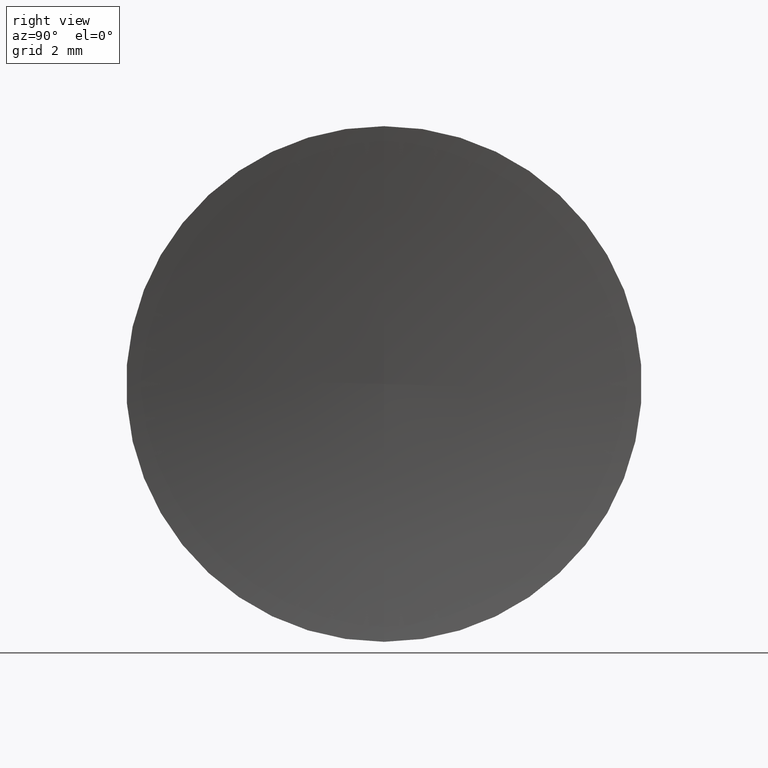
[diagram: clean part render]
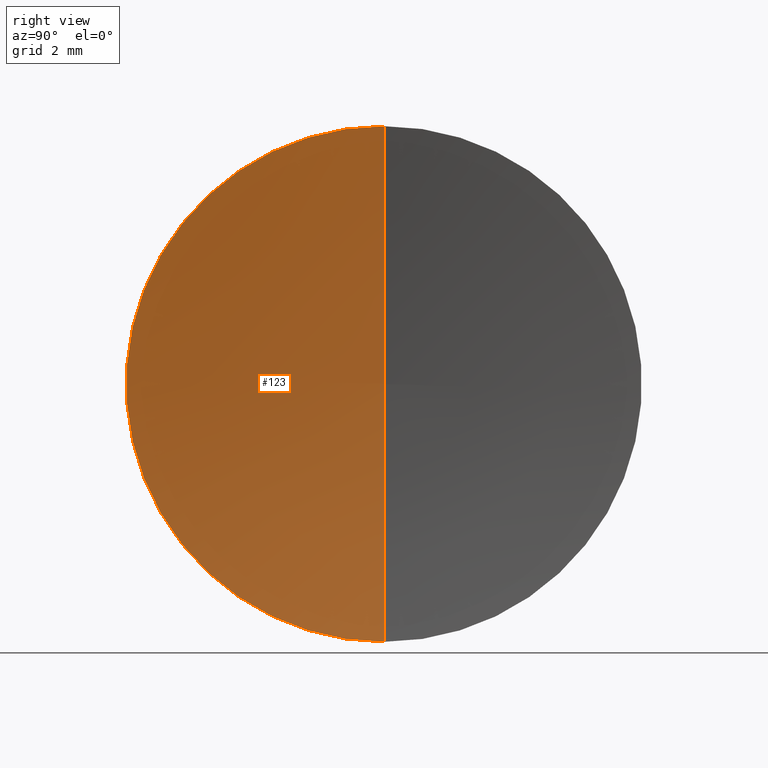
[diagram: same view with one face highlighted and labeled with its STEP entity id]
A machine part, right view. The second image highlights one B-rep face of the part: STEP entity #123.
In plain terms, the highlighted toroidal blend (fillet) surface has major radius 0.0337 mm and minor (blend) radius 51.64 mm.
Its self-contained STEP definition (entity closure, byte-faithful):
#5 = DIRECTION ( 'NONE',  ( -0.0000000000000000000, 1.000000000000000000, 1.224646799147353200E-016 ) ) ;
#12 = CIRCLE ( 'NONE', #25, 51.64000000000000800 ) ;
#19 = EDGE_CURVE ( 'NONE', #82, #127, #12, .T. ) ;
#21 = AXIS2_PLACEMENT_3D ( 'NONE', #122, #155, #96 ) ;
#23 = ORIENTED_EDGE ( 'NONE', *, *, #147, .F. ) ;
#24 = DIRECTION ( 'NONE',  ( 0.0000000000000000000, -1.343705248626496300E-016, 1.000000000000000000 ) ) ;
#25 = AXIS2_PLACEMENT_3D ( 'NONE', #85, #5, #24 ) ;
#27 = DIRECTION ( 'NONE',  ( 0.0000000000000000000, 0.0000000000000000000, 1.000000000000000000 ) ) ;
#29 = CARTESIAN_POINT ( 'NONE',  ( 97.45914170954007700, 26.08904114919495900, 0.0000000000000000000 ) ) ;
#37 = AXIS2_PLACEMENT_3D ( 'NONE', #29, #165, #27 ) ;
#42 = DIRECTION ( 'NONE',  ( 0.0000000000000000000, 0.0000000000000000000, -1.000000000000000000 ) ) ;
#43 = CARTESIAN_POINT ( 'NONE',  ( 97.45914170954007700, 26.08904114919495900, 0.03368067048223344400 ) ) ;
#50 = CARTESIAN_POINT ( 'NONE',  ( 45.81915269315437200, 26.08904114919495900, 0.0000000000000000000 ) ) ;
#55 = TOROIDAL_SURFACE ( 'NONE', #37, 0.03368067048223344400, 51.64000000000000800 ) ;
#56 = VERTEX_POINT ( 'NONE', #157 ) ;
#61 = ORIENTED_EDGE ( 'NONE', *, *, #19, .T. ) ;
#79 = CIRCLE ( 'NONE', #161, 51.64000000000000800 ) ;
#82 = VERTEX_POINT ( 'NONE', #90 ) ;
#85 = CARTESIAN_POINT ( 'NONE',  ( 97.45914170954007700, 26.08904114919495900, -0.03368067048223344400 ) ) ;
#89 = ORIENTED_EDGE ( 'NONE', *, *, #149, .F. ) ;
#90 = CARTESIAN_POINT ( 'NONE',  ( 46.43730955564588200, 26.08904114919495900, -8.000000000000007100 ) ) ;
#96 = DIRECTION ( 'NONE',  ( 0.0000000000000000000, 0.0000000000000000000, 1.000000000000000000 ) ) ;
#122 = CARTESIAN_POINT ( 'NONE',  ( 46.43730955564588200, 26.08904114919495900, 0.0000000000000000000 ) ) ;
#123 = ADVANCED_FACE ( 'NONE', ( #124 ), #55, .F. ) ;
#124 = FACE_OUTER_BOUND ( 'NONE', #125, .T. ) ;
#125 = EDGE_LOOP ( 'NONE', ( #89, #61, #23 ) ) ;
#127 = VERTEX_POINT ( 'NONE', #50 ) ;
#132 = DIRECTION ( 'NONE',  ( 0.0000000000000000000, -1.000000000000000000, 0.0000000000000000000 ) ) ;
#139 = CIRCLE ( 'NONE', #21, 7.999999999999996400 ) ;
#147 = EDGE_CURVE ( 'NONE', #56, #127, #79, .T. ) ;
#149 = EDGE_CURVE ( 'NONE', #82, #56, #139, .T. ) ;
#155 = DIRECTION ( 'NONE',  ( -1.000000000000000000, -0.0000000000000000000, -0.0000000000000000000 ) ) ;
#157 = CARTESIAN_POINT ( 'NONE',  ( 46.43730955564588200, 26.08904114919495900, 8.000000000000007100 ) ) ;
#161 = AXIS2_PLACEMENT_3D ( 'NONE', #43, #132, #42 ) ;
#165 = DIRECTION ( 'NONE',  ( -1.000000000000000000, -0.0000000000000000000, -0.0000000000000000000 ) ) ;